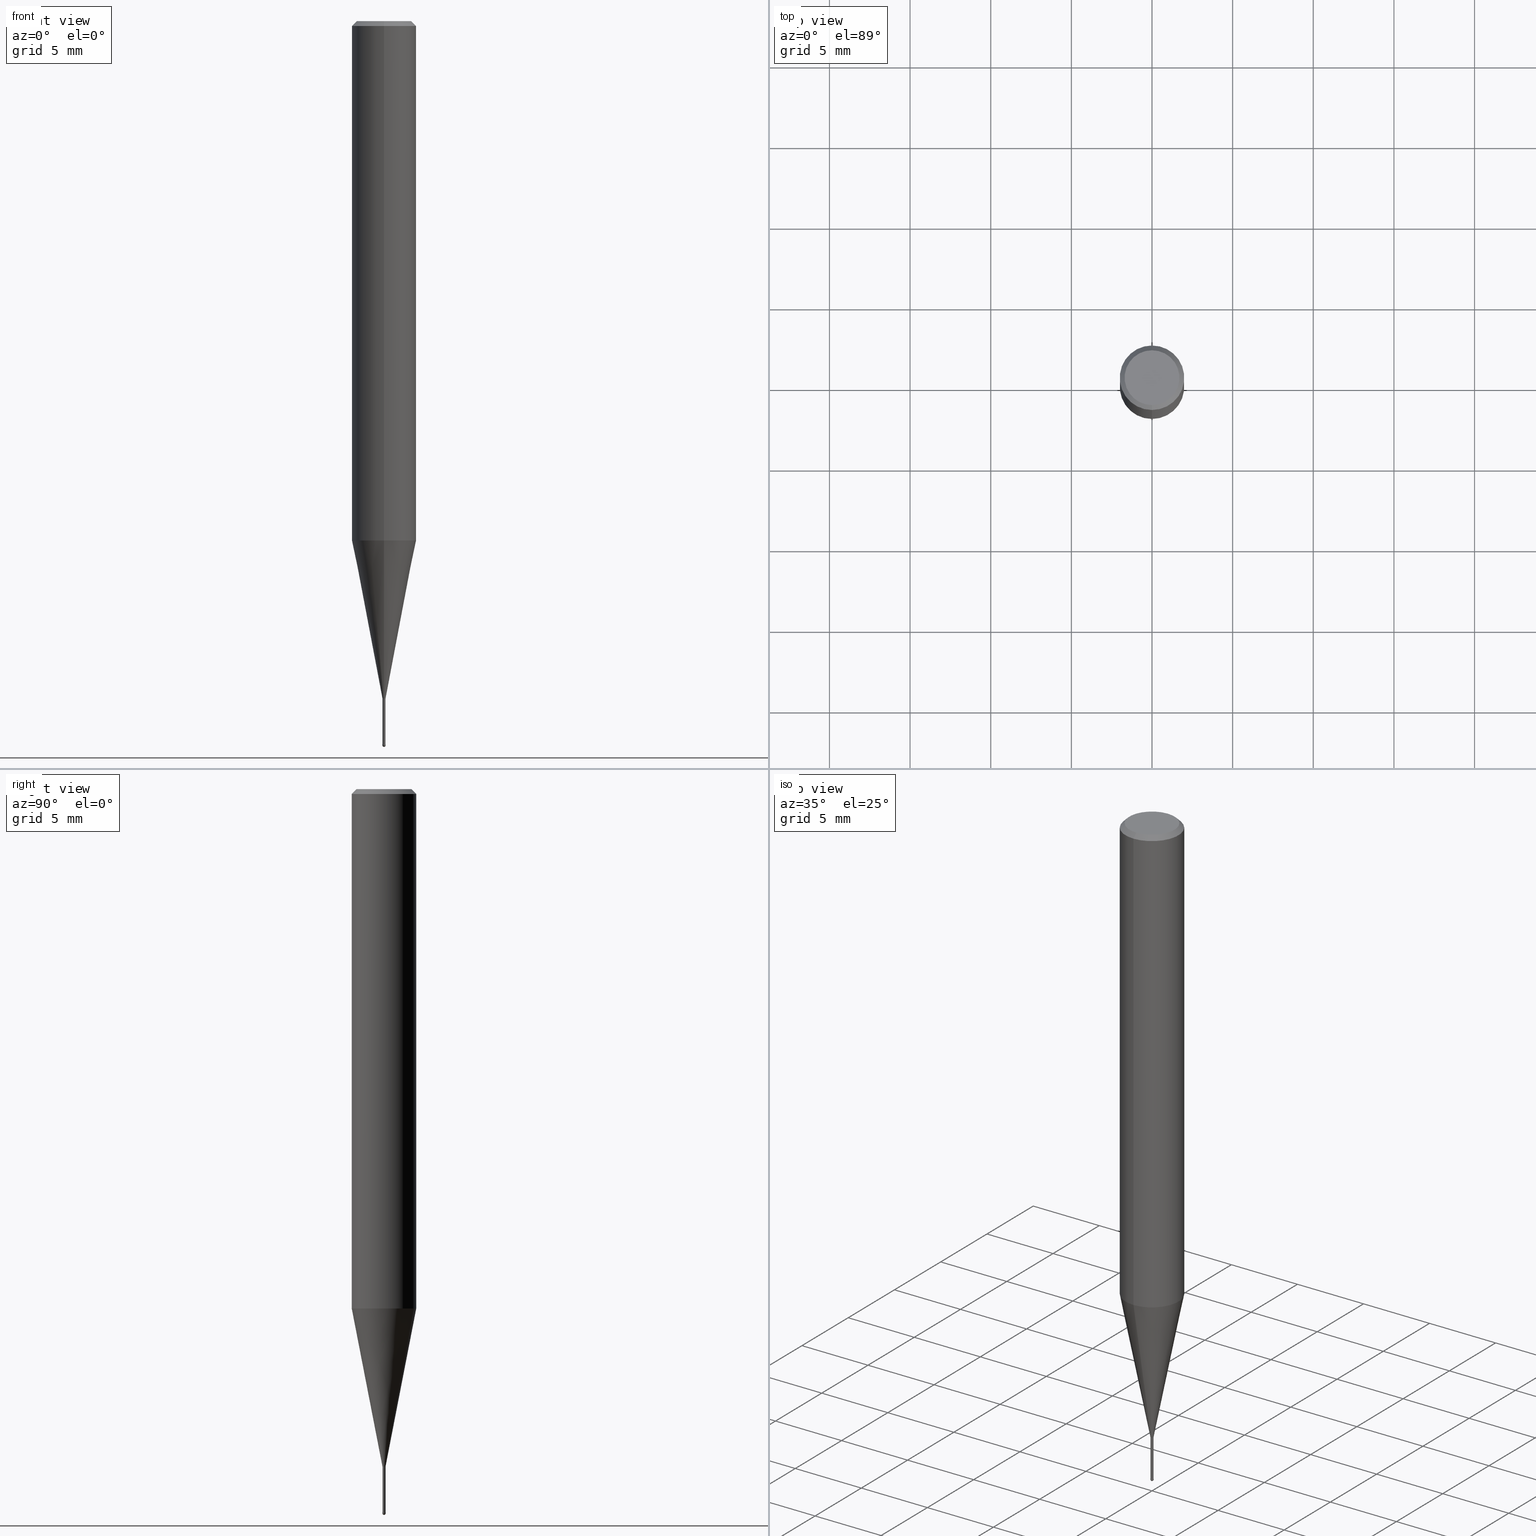
[diagram: canonical four-view strip — front | top / right | iso, engineering-drawing reading convention]
A machine part, canonical four-view strip (front | top / right | iso — engineering-drawing reading convention). The complete STEP part file that produces these views, byte-faithful:
ISO-10303-21;
HEADER;
FILE_DESCRIPTION(('no description'),'unknown implementation level');
FILE_NAME('CSELB2002-030-Huellk.stp','  ',('CIMSOURCE GmbH'),('CADClick - KiM GmbH - www.kimweb.de'),'unknown preprocess','ACIS','unknown authorization');
FILE_SCHEMA(('automotive_design'));
ENDSEC;
DATA;
#1=MECHANICAL_DESIGN_GEOMETRIC_PRESENTATION_REPRESENTATION(' ',(#14,#15,#16,#17,#18,#19,#20,#21,#22,#23,#24,#25,#26,#27,#28,#29,#30,#31,#32,#33,#34,#35,#36,#37,#38,#39,#40,#41,#42,#43,#44,#45,#46,#47,#48,#49,#50,#51,#52,#53,#54,#55,#56,#57,#58,#59,#60,#61,#62,#63,#64,#65,#66,#67,#68,#69,#70,#71,#72,#73,#74),#10);
#2=PRODUCT_DEFINITION_CONTEXT('',#75,'design');
#3=APPLICATION_PROTOCOL_DEFINITION('INTERNATIONAL STANDARD','automotive_design',1994,#75);
#4=PRODUCT_CATEGORY_RELATIONSHIP('NONE','NONE',#76,#77);
#5=SHAPE_DEFINITION_REPRESENTATION(#78,#79);
#6=PRODUCT_DEFINITION_CONTEXT('',#80,'design');
#7=APPLICATION_PROTOCOL_DEFINITION('INTERNATIONAL STANDARD','automotive_design',1994,#80);
#8=PRODUCT_CATEGORY_RELATIONSHIP('NONE','NONE',#81,#82);
#9=SHAPE_DEFINITION_REPRESENTATION(#83,#84);
#10= (GEOMETRIC_REPRESENTATION_CONTEXT(3)GLOBAL_UNCERTAINTY_ASSIGNED_CONTEXT((#87))GLOBAL_UNIT_ASSIGNED_CONTEXT((#89,#90,#91))REPRESENTATION_CONTEXT('NONE','WORKSPACE'));
#14=STYLED_ITEM('',(#93),#94);
#15=STYLED_ITEM('',(#95),#96);
#16=STYLED_ITEM('',(#97),#98);
#17=STYLED_ITEM('',(#99),#100);
#18=STYLED_ITEM('',(#101),#102);
#19=STYLED_ITEM('',(#103),#104);
#20=STYLED_ITEM('',(#105),#106);
#21=STYLED_ITEM('',(#107),#108);
#22=STYLED_ITEM('',(#109),#110);
#23=STYLED_ITEM('',(#111),#112);
#24=STYLED_ITEM('',(#113),#114);
#25=STYLED_ITEM('',(#115),#116);
#26=STYLED_ITEM('',(#117),#118);
#27=STYLED_ITEM('',(#119),#120);
#28=STYLED_ITEM('',(#121),#122);
#29=STYLED_ITEM('',(#123),#124);
#30=STYLED_ITEM('',(#125),#126);
#31=STYLED_ITEM('',(#127),#128);
#32=STYLED_ITEM('',(#129),#130);
#33=STYLED_ITEM('',(#131),#132);
#34=STYLED_ITEM('',(#133),#134);
#35=STYLED_ITEM('',(#135),#136);
#36=STYLED_ITEM('',(#137),#138);
#37=STYLED_ITEM('',(#139),#140);
#38=STYLED_ITEM('',(#141),#142);
#39=STYLED_ITEM('',(#143),#144);
#40=STYLED_ITEM('',(#145),#146);
#41=STYLED_ITEM('',(#147),#148);
#42=STYLED_ITEM('',(#149),#150);
#43=STYLED_ITEM('',(#151),#152);
#44=STYLED_ITEM('',(#153),#154);
#45=STYLED_ITEM('',(#155),#156);
#46=STYLED_ITEM('',(#157),#158);
#47=STYLED_ITEM('',(#159),#160);
#48=STYLED_ITEM('',(#161),#162);
#49=STYLED_ITEM('',(#163),#164);
#50=STYLED_ITEM('',(#165),#166);
#51=STYLED_ITEM('',(#167),#168);
#52=STYLED_ITEM('',(#169),#170);
#53=STYLED_ITEM('',(#171),#172);
#54=STYLED_ITEM('',(#173),#174);
#55=STYLED_ITEM('',(#175),#176);
#56=STYLED_ITEM('',(#177),#178);
#57=STYLED_ITEM('',(#179),#180);
#58=STYLED_ITEM('',(#181),#182);
#59=STYLED_ITEM('',(#183),#184);
#60=STYLED_ITEM('',(#185),#186);
#61=STYLED_ITEM('',(#187),#188);
#62=STYLED_ITEM('',(#189),#190);
#63=STYLED_ITEM('',(#191),#192);
#64=STYLED_ITEM('',(#193),#194);
#65=STYLED_ITEM('',(#195),#196);
#66=STYLED_ITEM('',(#197),#198);
#67=STYLED_ITEM('',(#199),#200);
#68=STYLED_ITEM('',(#201),#202);
#69=STYLED_ITEM('',(#203),#204);
#70=STYLED_ITEM('',(#205),#206);
#71=STYLED_ITEM('',(#207),#208);
#72=STYLED_ITEM('',(#209),#210);
#73=STYLED_ITEM('',(#211),#212);
#74=STYLED_ITEM('',(#213),#214);
#75=APPLICATION_CONTEXT(' ');
#76=PRODUCT_CATEGORY('part','NONE');
#77=PRODUCT_RELATED_PRODUCT_CATEGORY('detail',' ',(#215));
#78=PRODUCT_DEFINITION_SHAPE('NONE','NONE',#216);
#79=ADVANCED_BREP_SHAPE_REPRESENTATION('1',(#102,#217),#10);
#80=APPLICATION_CONTEXT(' ');
#81=PRODUCT_CATEGORY('part','NONE');
#82=PRODUCT_RELATED_PRODUCT_CATEGORY('detail',' ',(#218));
#83=PRODUCT_DEFINITION_SHAPE('NONE','NONE',#219);
#84=ADVANCED_BREP_SHAPE_REPRESENTATION('2',(#162,#220),#10);
#87=UNCERTAINTY_MEASURE_WITH_UNIT(LENGTH_MEASURE(1.0E-006),#89,'','');
#89= (CONVERSION_BASED_UNIT('MILLIMETRE',#223)LENGTH_UNIT()NAMED_UNIT(#226));
#90= (NAMED_UNIT(#228)PLANE_ANGLE_UNIT()SI_UNIT($,.RADIAN.));
#91= (NAMED_UNIT(#228)SOLID_ANGLE_UNIT()SI_UNIT($,.STERADIAN.));
#93=PRESENTATION_STYLE_ASSIGNMENT((#234));
#94=ADVANCED_FACE('',(#235),#236,.T.);
#95=PRESENTATION_STYLE_ASSIGNMENT((#237));
#96=EDGE_CURVE('',#136,#120,#238,.T.);
#97=PRESENTATION_STYLE_ASSIGNMENT((#239));
#98=EDGE_CURVE('',#208,#184,#240,.T.);
#99=PRESENTATION_STYLE_ASSIGNMENT((#241));
#100=ADVANCED_FACE('',(#242),#243,.T.);
#101=PRESENTATION_STYLE_ASSIGNMENT((#244));
#102=MANIFOLD_SOLID_BREP('1',#245);
#103=PRESENTATION_STYLE_ASSIGNMENT((#246));
#104=EDGE_CURVE('',#194,#188,#247,.T.);
#105=PRESENTATION_STYLE_ASSIGNMENT((#248));
#106=ADVANCED_FACE('',(#249),#250,.T.);
#107=PRESENTATION_STYLE_ASSIGNMENT((#251));
#108=ADVANCED_FACE('',(#252),#253,.T.);
#109=PRESENTATION_STYLE_ASSIGNMENT((#254));
#110=ADVANCED_FACE('',(#255),#256,.T.);
#111=PRESENTATION_STYLE_ASSIGNMENT((#257));
#112=EDGE_CURVE('',#180,#194,#258,.T.);
#113=PRESENTATION_STYLE_ASSIGNMENT((#259));
#114=ADVANCED_FACE('',(#260),#261,.T.);
#115=PRESENTATION_STYLE_ASSIGNMENT((#262));
#116=VERTEX_POINT('',#263);
#117=PRESENTATION_STYLE_ASSIGNMENT((#264));
#118=ADVANCED_FACE('',(#265),#266,.T.);
#119=PRESENTATION_STYLE_ASSIGNMENT((#267));
#120=VERTEX_POINT('',#268);
#121=PRESENTATION_STYLE_ASSIGNMENT((#269));
#122=EDGE_CURVE('',#120,#206,#270,.T.);
#123=PRESENTATION_STYLE_ASSIGNMENT((#271));
#124=EDGE_CURVE('',#210,#206,#272,.T.);
#125=PRESENTATION_STYLE_ASSIGNMENT((#273));
#126=ADVANCED_FACE('',(#274),#275,.T.);
#127=PRESENTATION_STYLE_ASSIGNMENT((#276));
#128=EDGE_CURVE('',#210,#136,#277,.T.);
#129=PRESENTATION_STYLE_ASSIGNMENT((#278));
#130=EDGE_CURVE('',#190,#168,#279,.T.);
#131=PRESENTATION_STYLE_ASSIGNMENT((#280));
#132=EDGE_CURVE('',#206,#184,#281,.T.);
#133=PRESENTATION_STYLE_ASSIGNMENT((#282));
#134=ADVANCED_FACE('',(#283),#284,.T.);
#135=PRESENTATION_STYLE_ASSIGNMENT((#285));
#136=VERTEX_POINT('',#286);
#137=PRESENTATION_STYLE_ASSIGNMENT((#287));
#138=VERTEX_POINT('',#288);
#139=PRESENTATION_STYLE_ASSIGNMENT((#289));
#140=EDGE_CURVE('',#120,#136,#290,.T.);
#141=PRESENTATION_STYLE_ASSIGNMENT((#291));
#142=EDGE_CURVE('',#184,#208,#292,.T.);
#143=PRESENTATION_STYLE_ASSIGNMENT((#293));
#144=EDGE_CURVE('',#150,#194,#294,.T.);
#145=PRESENTATION_STYLE_ASSIGNMENT((#295));
#146=EDGE_CURVE('',#180,#200,#296,.T.);
#147=PRESENTATION_STYLE_ASSIGNMENT((#297));
#148=EDGE_CURVE('',#206,#210,#298,.T.);
#149=PRESENTATION_STYLE_ASSIGNMENT((#299));
#150=VERTEX_POINT('',#300);
#151=PRESENTATION_STYLE_ASSIGNMENT((#301));
#152=ADVANCED_FACE('',(#302),#303,.T.);
#153=PRESENTATION_STYLE_ASSIGNMENT((#304));
#154=ADVANCED_FACE('',(#305),#306,.T.);
#155=PRESENTATION_STYLE_ASSIGNMENT((#307));
#156=EDGE_CURVE('',#208,#210,#308,.T.);
#157=PRESENTATION_STYLE_ASSIGNMENT((#309));
#158=EDGE_CURVE('',#168,#190,#310,.T.);
#159=PRESENTATION_STYLE_ASSIGNMENT((#311));
#160=EDGE_CURVE('',#168,#138,#312,.T.);
#161=PRESENTATION_STYLE_ASSIGNMENT((#313));
#162=MANIFOLD_SOLID_BREP('2',#314);
#163=PRESENTATION_STYLE_ASSIGNMENT((#315));
#164=ADVANCED_FACE('',(#316,#317),#318,.T.);
#165=PRESENTATION_STYLE_ASSIGNMENT((#319));
#166=EDGE_CURVE('',#138,#176,#320,.T.);
#167=PRESENTATION_STYLE_ASSIGNMENT((#321));
#168=VERTEX_POINT('',#322);
#169=PRESENTATION_STYLE_ASSIGNMENT((#323));
#170=EDGE_CURVE('',#168,#190,#324,.T.);
#171=PRESENTATION_STYLE_ASSIGNMENT((#325));
#172=ADVANCED_FACE('',(#326),#327,.T.);
#173=PRESENTATION_STYLE_ASSIGNMENT((#328));
#174=EDGE_CURVE('',#200,#150,#329,.T.);
#175=PRESENTATION_STYLE_ASSIGNMENT((#330));
#176=VERTEX_POINT('',#331);
#177=PRESENTATION_STYLE_ASSIGNMENT((#332));
#178=ADVANCED_FACE('',(#333),#334,.T.);
#179=PRESENTATION_STYLE_ASSIGNMENT((#335));
#180=VERTEX_POINT('',#336);
#181=PRESENTATION_STYLE_ASSIGNMENT((#337));
#182=ADVANCED_FACE('',(#338),#339,.T.);
#183=PRESENTATION_STYLE_ASSIGNMENT((#340));
#184=VERTEX_POINT('',#341);
#185=PRESENTATION_STYLE_ASSIGNMENT((#342));
#186=EDGE_CURVE('',#150,#200,#343,.T.);
#187=PRESENTATION_STYLE_ASSIGNMENT((#344));
#188=VERTEX_POINT('',#345);
#189=PRESENTATION_STYLE_ASSIGNMENT((#346));
#190=VERTEX_POINT('',#347);
#191=PRESENTATION_STYLE_ASSIGNMENT((#348));
#192=EDGE_CURVE('',#116,#188,#349,.T.);
#193=PRESENTATION_STYLE_ASSIGNMENT((#350));
#194=VERTEX_POINT('',#351);
#195=PRESENTATION_STYLE_ASSIGNMENT((#352));
#196=ADVANCED_FACE('',(#353),#354,.T.);
#197=PRESENTATION_STYLE_ASSIGNMENT((#355));
#198=EDGE_CURVE('',#116,#180,#356,.T.);
#199=PRESENTATION_STYLE_ASSIGNMENT((#357));
#200=VERTEX_POINT('',#358);
#201=PRESENTATION_STYLE_ASSIGNMENT((#359));
#202=EDGE_CURVE('',#176,#138,#360,.T.);
#203=PRESENTATION_STYLE_ASSIGNMENT((#361));
#204=EDGE_CURVE('',#188,#116,#362,.T.);
#205=PRESENTATION_STYLE_ASSIGNMENT((#363));
#206=VERTEX_POINT('',#364);
#207=PRESENTATION_STYLE_ASSIGNMENT((#365));
#208=VERTEX_POINT('',#366);
#209=PRESENTATION_STYLE_ASSIGNMENT((#367));
#210=VERTEX_POINT('',#368);
#211=PRESENTATION_STYLE_ASSIGNMENT((#369));
#212=EDGE_CURVE('',#176,#190,#370,.T.);
#213=PRESENTATION_STYLE_ASSIGNMENT((#371));
#214=EDGE_CURVE('',#194,#180,#372,.T.);
#215=PRODUCT('1','1','PART-1-DESC',(#373));
#216=PRODUCT_DEFINITION('NONE','NONE',#374,#2);
#217=AXIS2_PLACEMENT_3D('',#375,#376,#377);
#218=PRODUCT('2','2','PART-2-DESC',(#378));
#219=PRODUCT_DEFINITION('NONE','NONE',#379,#6);
#220=AXIS2_PLACEMENT_3D('',#380,#381,#382);
#223=LENGTH_MEASURE_WITH_UNIT(LENGTH_MEASURE(1.0),#383);
#226=DIMENSIONAL_EXPONENTS(1.0,0.0,0.0,0.0,0.0,0.0,0.0);
#228=DIMENSIONAL_EXPONENTS(0.0,0.0,0.0,0.0,0.0,0.0,0.0);
#234=SURFACE_STYLE_USAGE(.BOTH.,#384);
#235=FACE_OUTER_BOUND('',#385,.T.);
#236=CYLINDRICAL_SURFACE('',#386,0.09495);
#237=CURVE_STYLE('',#387,POSITIVE_LENGTH_MEASURE(1.0E-006),#388);
#238=CIRCLE('',#389,2.0);
#239=CURVE_STYLE('',#390,POSITIVE_LENGTH_MEASURE(1.0E-006),#391);
#240=CIRCLE('',#392,1.7);
#241=SURFACE_STYLE_USAGE(.BOTH.,#393);
#242=FACE_OUTER_BOUND('',#394,.T.);
#243=CONICAL_SURFACE('',#395,1.85,0.785398163397447);
#244=SURFACE_STYLE_USAGE(.BOTH.,#396);
#245=CLOSED_SHELL('',(#94,#114,#134,#108,#164,#154,#100,#110,#178,#172,#182));
#246=CURVE_STYLE('',#397,POSITIVE_LENGTH_MEASURE(1.0E-006),#398);
#247=LINE('',#399,#400);
#248=SURFACE_STYLE_USAGE(.BOTH.,#401);
#249=FACE_OUTER_BOUND('',#402,.T.);
#250=CONICAL_SURFACE('',#403,0.09995,0.00166666512345941);
#251=SURFACE_STYLE_USAGE(.BOTH.,#404);
#252=FACE_OUTER_BOUND('',#405,.T.);
#253=CONICAL_SURFACE('',#406,1.85,0.785398163397447);
#254=SURFACE_STYLE_USAGE(.BOTH.,#407);
#255=FACE_OUTER_BOUND('',#408,.T.);
#256=CYLINDRICAL_SURFACE('',#409,2.0);
#257=CURVE_STYLE('',#410,POSITIVE_LENGTH_MEASURE(1.0E-006),#411);
#258=CIRCLE('',#412,0.09495);
#259=SURFACE_STYLE_USAGE(.BOTH.,#413);
#260=FACE_OUTER_BOUND('',#414,.T.);
#261=CONICAL_SURFACE('',#415,1.04745,0.191993392580482);
#262=POINT_STYLE(' ',#416,POSITIVE_LENGTH_MEASURE(1.0E-006),#417);
#263=CARTESIAN_POINT('',(0.0,1.99995,-32.2));
#264=SURFACE_STYLE_USAGE(.BOTH.,#418);
#265=FACE_OUTER_BOUND('',#419,.T.);
#266=SPHERICAL_SURFACE('',#420,0.1);
#267=POINT_STYLE(' ',#421,POSITIVE_LENGTH_MEASURE(1.0E-006),#422);
#268=CARTESIAN_POINT('',(2.44921270764475E-016,-2.0,-32.2));
#269=CURVE_STYLE('',#423,POSITIVE_LENGTH_MEASURE(1.0E-006),#424);
#270=LINE('',#425,#426);
#271=CURVE_STYLE('',#427,POSITIVE_LENGTH_MEASURE(1.0E-006),#428);
#272=CIRCLE('',#429,2.0);
#273=SURFACE_STYLE_USAGE(.BOTH.,#430);
#274=FACE_OUTER_BOUND('',#431,.T.);
#275=CONICAL_SURFACE('',#432,0.09995,0.00166666512345941);
#276=CURVE_STYLE('',#433,POSITIVE_LENGTH_MEASURE(1.0E-006),#434);
#277=LINE('',#435,#436);
#278=CURVE_STYLE('',#437,POSITIVE_LENGTH_MEASURE(1.0E-006),#438);
#279=CIRCLE('',#439,0.1);
#280=CURVE_STYLE('',#440,POSITIVE_LENGTH_MEASURE(1.0E-006),#441);
#281=LINE('',#442,#443);
#282=SURFACE_STYLE_USAGE(.BOTH.,#444);
#283=FACE_OUTER_BOUND('',#445,.T.);
#284=CYLINDRICAL_SURFACE('',#446,2.0);
#285=POINT_STYLE(' ',#447,POSITIVE_LENGTH_MEASURE(1.0E-006),#448);
#286=CARTESIAN_POINT('',(0.0,2.0,-32.2));
#287=POINT_STYLE(' ',#449,POSITIVE_LENGTH_MEASURE(1.0E-006),#450);
#288=CARTESIAN_POINT('',(1.22338174746855E-017,-0.0999,-44.84));
#289=CURVE_STYLE('',#451,POSITIVE_LENGTH_MEASURE(1.0E-006),#452);
#290=CIRCLE('',#453,2.0);
#291=CURVE_STYLE('',#454,POSITIVE_LENGTH_MEASURE(1.0E-006),#455);
#292=CIRCLE('',#456,1.7);
#293=CURVE_STYLE('',#457,POSITIVE_LENGTH_MEASURE(1.0E-006),#458);
#294=LINE('',#459,#460);
#295=CURVE_STYLE('',#461,POSITIVE_LENGTH_MEASURE(1.0E-006),#462);
#296=LINE('',#463,#464);
#297=CURVE_STYLE('',#465,POSITIVE_LENGTH_MEASURE(1.0E-006),#466);
#298=CIRCLE('',#467,2.0);
#299=POINT_STYLE(' ',#468,POSITIVE_LENGTH_MEASURE(1.0E-006),#469);
#300=CARTESIAN_POINT('',(1.16276373295435E-017,-0.09495,-44.84));
#301=SURFACE_STYLE_USAGE(.BOTH.,#470);
#302=FACE_OUTER_BOUND('',#471,.T.);
#303=SPHERICAL_SURFACE('',#472,0.1);
#304=SURFACE_STYLE_USAGE(.BOTH.,#473);
#305=FACE_OUTER_BOUND('',#474,.T.);
#306=PLANE('',#475);
#307=CURVE_STYLE('',#476,POSITIVE_LENGTH_MEASURE(1.0E-006),#477);
#308=LINE('',#478,#479);
#309=CURVE_STYLE('',#480,POSITIVE_LENGTH_MEASURE(1.0E-006),#481);
#310=CIRCLE('',#482,0.1);
#311=CURVE_STYLE('',#483,POSITIVE_LENGTH_MEASURE(1.0E-006),#484);
#312=LINE('',#485,#486);
#313=SURFACE_STYLE_USAGE(.BOTH.,#487);
#314=CLOSED_SHELL('',(#118,#126,#196,#106,#152));
#315=SURFACE_STYLE_USAGE(.BOTH.,#488);
#316=FACE_OUTER_BOUND('',#489,.T.);
#317=FACE_BOUND('',#490,.T.);
#318=PLANE('',#491);
#319=CURVE_STYLE('',#492,POSITIVE_LENGTH_MEASURE(1.0E-006),#493);
#320=CIRCLE('',#494,0.0999);
#321=POINT_STYLE(' ',#495,POSITIVE_LENGTH_MEASURE(1.0E-006),#496);
#322=CARTESIAN_POINT('',(1.22460635382238E-017,-0.1,-44.9));
#323=CURVE_STYLE('',#497,POSITIVE_LENGTH_MEASURE(1.0E-006),#498);
#324=CIRCLE('',#499,0.1);
#325=SURFACE_STYLE_USAGE(.BOTH.,#500);
#326=FACE_OUTER_BOUND('',#501,.T.);
#327=CYLINDRICAL_SURFACE('',#502,0.09495);
#328=CURVE_STYLE('',#503,POSITIVE_LENGTH_MEASURE(1.0E-006),#504);
#329=CIRCLE('',#505,0.09495);
#330=POINT_STYLE(' ',#506,POSITIVE_LENGTH_MEASURE(1.0E-006),#507);
#331=CARTESIAN_POINT('',(0.0,0.0999,-44.84));
#332=SURFACE_STYLE_USAGE(.BOTH.,#508);
#333=FACE_OUTER_BOUND('',#509,.T.);
#334=CONICAL_SURFACE('',#510,1.04745,0.191993392580482);
#335=POINT_STYLE(' ',#511,POSITIVE_LENGTH_MEASURE(1.0E-006),#512);
#336=CARTESIAN_POINT('',(0.0,0.09495,-42.0));
#337=SURFACE_STYLE_USAGE(.BOTH.,#513);
#338=FACE_OUTER_BOUND('',#514,.T.);
#339=PLANE('',#515);
#340=POINT_STYLE(' ',#516,POSITIVE_LENGTH_MEASURE(1.0E-006),#517);
#341=CARTESIAN_POINT('',(2.08183080149804E-016,-1.7,0.0));
#342=CURVE_STYLE('',#518,POSITIVE_LENGTH_MEASURE(1.0E-006),#519);
#343=CIRCLE('',#520,0.09495);
#344=POINT_STYLE(' ',#521,POSITIVE_LENGTH_MEASURE(1.0E-006),#522);
#345=CARTESIAN_POINT('',(2.44915147732706E-016,-1.99995,-32.2));
#346=POINT_STYLE(' ',#523,POSITIVE_LENGTH_MEASURE(1.0E-006),#524);
#347=CARTESIAN_POINT('',(0.0,0.1,-44.9));
#348=CURVE_STYLE('',#525,POSITIVE_LENGTH_MEASURE(1.0E-006),#526);
#349=CIRCLE('',#527,1.99995);
#350=POINT_STYLE(' ',#528,POSITIVE_LENGTH_MEASURE(1.0E-006),#529);
#351=CARTESIAN_POINT('',(1.16276373295435E-017,-0.09495,-42.0));
#352=SURFACE_STYLE_USAGE(.BOTH.,#530);
#353=FACE_OUTER_BOUND('',#531,.T.);
#354=PLANE('',#532);
#355=CURVE_STYLE('',#533,POSITIVE_LENGTH_MEASURE(1.0E-006),#534);
#356=LINE('',#535,#536);
#357=POINT_STYLE(' ',#537,POSITIVE_LENGTH_MEASURE(1.0E-006),#538);
#358=CARTESIAN_POINT('',(0.0,0.09495,-44.84));
#359=CURVE_STYLE('',#539,POSITIVE_LENGTH_MEASURE(1.0E-006),#540);
#360=CIRCLE('',#541,0.0999);
#361=CURVE_STYLE('',#542,POSITIVE_LENGTH_MEASURE(1.0E-006),#543);
#362=CIRCLE('',#544,1.99995);
#363=POINT_STYLE(' ',#545,POSITIVE_LENGTH_MEASURE(1.0E-006),#546);
#364=CARTESIAN_POINT('',(2.44921270764475E-016,-2.0,-0.300000000000001));
#365=POINT_STYLE(' ',#547,POSITIVE_LENGTH_MEASURE(1.0E-006),#548);
#366=CARTESIAN_POINT('',(0.0,1.7,0.0));
#367=POINT_STYLE(' ',#549,POSITIVE_LENGTH_MEASURE(1.0E-006),#550);
#368=CARTESIAN_POINT('',(0.0,2.0,-0.300000000000001));
#369=CURVE_STYLE('',#551,POSITIVE_LENGTH_MEASURE(1.0E-006),#552);
#370=LINE('',#553,#554);
#371=CURVE_STYLE('',#555,POSITIVE_LENGTH_MEASURE(1.0E-006),#556);
#372=CIRCLE('',#557,0.09495);
#373=PRODUCT_CONTEXT('',#75,'mechanical');
#374=PRODUCT_DEFINITION_FORMATION_WITH_SPECIFIED_SOURCE(' ','NONE',#215,.NOT_KNOWN.);
#375=CARTESIAN_POINT('',(0.0,0.0,0.0));
#376=DIRECTION('',(0.0,0.0,1.0));
#377=DIRECTION('',(1.0,0.0,0.0));
#378=PRODUCT_CONTEXT('',#80,'mechanical');
#379=PRODUCT_DEFINITION_FORMATION_WITH_SPECIFIED_SOURCE(' ','NONE',#218,.NOT_KNOWN.);
#380=CARTESIAN_POINT('',(0.0,0.0,0.0));
#381=DIRECTION('',(0.0,0.0,1.0));
#382=DIRECTION('',(1.0,0.0,0.0));
#383= (NAMED_UNIT(#226)LENGTH_UNIT()SI_UNIT(.MILLI.,.METRE.));
#384=SURFACE_SIDE_STYLE('',(#559));
#385=EDGE_LOOP('',(#560,#561,#562,#563));
#386=AXIS2_PLACEMENT_3D('',#564,#565,#566);
#387=DRAUGHTING_PRE_DEFINED_CURVE_FONT('continuous');
#388=COLOUR_RGB('',0.498039215803146,0.498039215803146,0.498039215803146);
#389=AXIS2_PLACEMENT_3D('',#567,#568,#569);
#390=DRAUGHTING_PRE_DEFINED_CURVE_FONT('continuous');
#391=COLOUR_RGB('',0.498039215803146,0.498039215803146,0.498039215803146);
#392=AXIS2_PLACEMENT_3D('',#570,#571,#572);
#393=SURFACE_SIDE_STYLE('',(#573));
#394=EDGE_LOOP('',(#574,#575,#576,#577));
#395=AXIS2_PLACEMENT_3D('',#578,#579,#580);
#396=SURFACE_SIDE_STYLE('',(#581));
#397=DRAUGHTING_PRE_DEFINED_CURVE_FONT('continuous');
#398=COLOUR_RGB('',0.498039215803146,0.498039215803146,0.498039215803146);
#399=CARTESIAN_POINT('',(1.28271392531125E-016,-1.04745,-37.1));
#400=VECTOR('',#582,1.0);
#401=SURFACE_SIDE_STYLE('',(#583));
#402=EDGE_LOOP('',(#584,#585,#586,#587));
#403=AXIS2_PLACEMENT_3D('',#588,#589,#590);
#404=SURFACE_SIDE_STYLE('',(#591));
#405=EDGE_LOOP('',(#592,#593,#594,#595));
#406=AXIS2_PLACEMENT_3D('',#596,#597,#598);
#407=SURFACE_SIDE_STYLE('',(#599));
#408=EDGE_LOOP('',(#600,#601,#602,#603));
#409=AXIS2_PLACEMENT_3D('',#604,#605,#606);
#410=DRAUGHTING_PRE_DEFINED_CURVE_FONT('continuous');
#411=COLOUR_RGB('',0.498039215803146,0.498039215803146,0.498039215803146);
#412=AXIS2_PLACEMENT_3D('',#607,#608,#609);
#413=SURFACE_SIDE_STYLE('',(#610));
#414=EDGE_LOOP('',(#611,#612,#613,#614));
#415=AXIS2_PLACEMENT_3D('',#615,#616,#617);
#416=PRE_DEFINED_MARKER('');
#417=COLOUR_RGB('',0.498039215803146,0.498039215803146,0.498039215803146);
#418=SURFACE_SIDE_STYLE('',(#618));
#419=EDGE_LOOP('',(#619,#620));
#420=AXIS2_PLACEMENT_3D('',#621,#622,#623);
#421=PRE_DEFINED_MARKER('');
#422=COLOUR_RGB('',0.498039215803146,0.498039215803146,0.498039215803146);
#423=DRAUGHTING_PRE_DEFINED_CURVE_FONT('continuous');
#424=COLOUR_RGB('',0.498039215803146,0.498039215803146,0.498039215803146);
#425=CARTESIAN_POINT('',(2.44921270764475E-016,-2.0,-16.25));
#426=VECTOR('',#624,1.0);
#427=DRAUGHTING_PRE_DEFINED_CURVE_FONT('continuous');
#428=COLOUR_RGB('',0.498039215803146,0.498039215803146,0.498039215803146);
#429=AXIS2_PLACEMENT_3D('',#625,#626,#627);
#430=SURFACE_SIDE_STYLE('',(#628));
#431=EDGE_LOOP('',(#629,#630,#631,#632));
#432=AXIS2_PLACEMENT_3D('',#633,#634,#635);
#433=DRAUGHTING_PRE_DEFINED_CURVE_FONT('continuous');
#434=COLOUR_RGB('',0.498039215803146,0.498039215803146,0.498039215803146);
#435=CARTESIAN_POINT('',(-2.44921270764475E-016,2.0,-16.25));
#436=VECTOR('',#636,1.0);
#437=DRAUGHTING_PRE_DEFINED_CURVE_FONT('continuous');
#438=COLOUR_RGB('',0.800000011920929,0.800000011920929,0.800000011920929);
#439=AXIS2_PLACEMENT_3D('',#637,#638,#639);
#440=DRAUGHTING_PRE_DEFINED_CURVE_FONT('continuous');
#441=COLOUR_RGB('',0.498039215803146,0.498039215803146,0.498039215803146);
#442=CARTESIAN_POINT('',(2.2655217545714E-016,-1.85,-0.149999999999999));
#443=VECTOR('',#640,1.0);
#444=SURFACE_SIDE_STYLE('',(#641));
#445=EDGE_LOOP('',(#642,#643,#644,#645));
#446=AXIS2_PLACEMENT_3D('',#646,#647,#648);
#447=PRE_DEFINED_MARKER('');
#448=COLOUR_RGB('',0.498039215803146,0.498039215803146,0.498039215803146);
#449=PRE_DEFINED_MARKER('');
#450=COLOUR_RGB('',0.800000011920929,0.800000011920929,0.800000011920929);
#451=DRAUGHTING_PRE_DEFINED_CURVE_FONT('continuous');
#452=COLOUR_RGB('',0.498039215803146,0.498039215803146,0.498039215803146);
#453=AXIS2_PLACEMENT_3D('',#649,#650,#651);
#454=DRAUGHTING_PRE_DEFINED_CURVE_FONT('continuous');
#455=COLOUR_RGB('',0.498039215803146,0.498039215803146,0.498039215803146);
#456=AXIS2_PLACEMENT_3D('',#652,#653,#654);
#457=DRAUGHTING_PRE_DEFINED_CURVE_FONT('continuous');
#458=COLOUR_RGB('',0.498039215803146,0.498039215803146,0.498039215803146);
#459=CARTESIAN_POINT('',(1.16276373295435E-017,-0.09495,-43.42));
#460=VECTOR('',#655,1.0);
#461=DRAUGHTING_PRE_DEFINED_CURVE_FONT('continuous');
#462=COLOUR_RGB('',0.498039215803146,0.498039215803146,0.498039215803146);
#463=CARTESIAN_POINT('',(-1.16276373295435E-017,0.09495,-43.42));
#464=VECTOR('',#656,1.0);
#465=DRAUGHTING_PRE_DEFINED_CURVE_FONT('continuous');
#466=COLOUR_RGB('',0.498039215803146,0.498039215803146,0.498039215803146);
#467=AXIS2_PLACEMENT_3D('',#657,#658,#659);
#468=PRE_DEFINED_MARKER('');
#469=COLOUR_RGB('',0.498039215803146,0.498039215803146,0.498039215803146);
#470=SURFACE_SIDE_STYLE('',(#660));
#471=EDGE_LOOP('',(#661,#662));
#472=AXIS2_PLACEMENT_3D('',#663,#664,#665);
#473=SURFACE_SIDE_STYLE('',(#666));
#474=EDGE_LOOP('',(#667,#668));
#475=AXIS2_PLACEMENT_3D('',#669,#670,#671);
#476=DRAUGHTING_PRE_DEFINED_CURVE_FONT('continuous');
#477=COLOUR_RGB('',0.498039215803146,0.498039215803146,0.498039215803146);
#478=CARTESIAN_POINT('',(-2.2655217545714E-016,1.85,-0.149999999999999));
#479=VECTOR('',#672,1.0);
#480=DRAUGHTING_PRE_DEFINED_CURVE_FONT('continuous');
#481=COLOUR_RGB('',0.800000011920929,0.800000011920929,0.800000011920929);
#482=AXIS2_PLACEMENT_3D('',#673,#674,#675);
#483=DRAUGHTING_PRE_DEFINED_CURVE_FONT('continuous');
#484=COLOUR_RGB('',0.800000011920929,0.800000011920929,0.800000011920929);
#485=CARTESIAN_POINT('',(1.22399405064547E-017,-0.09995,-44.87));
#486=VECTOR('',#676,1.0);
#487=SURFACE_SIDE_STYLE('',(#677));
#488=SURFACE_SIDE_STYLE('',(#678));
#489=EDGE_LOOP('',(#679,#680));
#490=EDGE_LOOP('',(#681,#682));
#491=AXIS2_PLACEMENT_3D('',#683,#684,#685);
#492=DRAUGHTING_PRE_DEFINED_CURVE_FONT('continuous');
#493=COLOUR_RGB('',0.800000011920929,0.800000011920929,0.800000011920929);
#494=AXIS2_PLACEMENT_3D('',#686,#687,#688);
#495=PRE_DEFINED_MARKER('');
#496=COLOUR_RGB('',0.800000011920929,0.800000011920929,0.800000011920929);
#497=DRAUGHTING_PRE_DEFINED_CURVE_FONT('continuous');
#498=COLOUR_RGB('',0.800000011920929,0.800000011920929,0.800000011920929);
#499=AXIS2_PLACEMENT_3D('',#689,#690,#691);
#500=SURFACE_SIDE_STYLE('',(#692));
#501=EDGE_LOOP('',(#693,#694,#695,#696));
#502=AXIS2_PLACEMENT_3D('',#697,#698,#699);
#503=DRAUGHTING_PRE_DEFINED_CURVE_FONT('continuous');
#504=COLOUR_RGB('',0.498039215803146,0.498039215803146,0.498039215803146);
#505=AXIS2_PLACEMENT_3D('',#700,#701,#702);
#506=PRE_DEFINED_MARKER('');
#507=COLOUR_RGB('',0.800000011920929,0.800000011920929,0.800000011920929);
#508=SURFACE_SIDE_STYLE('',(#703));
#509=EDGE_LOOP('',(#704,#705,#706,#707));
#510=AXIS2_PLACEMENT_3D('',#708,#709,#710);
#511=PRE_DEFINED_MARKER('');
#512=COLOUR_RGB('',0.498039215803146,0.498039215803146,0.498039215803146);
#513=SURFACE_SIDE_STYLE('',(#711));
#514=EDGE_LOOP('',(#712,#713));
#515=AXIS2_PLACEMENT_3D('',#714,#715,#716);
#516=PRE_DEFINED_MARKER('');
#517=COLOUR_RGB('',0.498039215803146,0.498039215803146,0.498039215803146);
#518=DRAUGHTING_PRE_DEFINED_CURVE_FONT('continuous');
#519=COLOUR_RGB('',0.498039215803146,0.498039215803146,0.498039215803146);
#520=AXIS2_PLACEMENT_3D('',#717,#718,#719);
#521=PRE_DEFINED_MARKER('');
#522=COLOUR_RGB('',0.498039215803146,0.498039215803146,0.498039215803146);
#523=PRE_DEFINED_MARKER('');
#524=COLOUR_RGB('',0.800000011920929,0.800000011920929,0.800000011920929);
#525=DRAUGHTING_PRE_DEFINED_CURVE_FONT('continuous');
#526=COLOUR_RGB('',0.498039215803146,0.498039215803146,0.498039215803146);
#527=AXIS2_PLACEMENT_3D('',#720,#721,#722);
#528=PRE_DEFINED_MARKER('');
#529=COLOUR_RGB('',0.498039215803146,0.498039215803146,0.498039215803146);
#530=SURFACE_SIDE_STYLE('',(#723));
#531=EDGE_LOOP('',(#724,#725));
#532=AXIS2_PLACEMENT_3D('',#726,#727,#728);
#533=DRAUGHTING_PRE_DEFINED_CURVE_FONT('continuous');
#534=COLOUR_RGB('',0.498039215803146,0.498039215803146,0.498039215803146);
#535=CARTESIAN_POINT('',(-1.28271392531125E-016,1.04745,-37.1));
#536=VECTOR('',#729,1.0);
#537=PRE_DEFINED_MARKER('');
#538=COLOUR_RGB('',0.498039215803146,0.498039215803146,0.498039215803146);
#539=DRAUGHTING_PRE_DEFINED_CURVE_FONT('continuous');
#540=COLOUR_RGB('',0.800000011920929,0.800000011920929,0.800000011920929);
#541=AXIS2_PLACEMENT_3D('',#730,#731,#732);
#542=DRAUGHTING_PRE_DEFINED_CURVE_FONT('continuous');
#543=COLOUR_RGB('',0.498039215803146,0.498039215803146,0.498039215803146);
#544=AXIS2_PLACEMENT_3D('',#733,#734,#735);
#545=PRE_DEFINED_MARKER('');
#546=COLOUR_RGB('',0.498039215803146,0.498039215803146,0.498039215803146);
#547=PRE_DEFINED_MARKER('');
#548=COLOUR_RGB('',0.498039215803146,0.498039215803146,0.498039215803146);
#549=PRE_DEFINED_MARKER('');
#550=COLOUR_RGB('',0.498039215803146,0.498039215803146,0.498039215803146);
#551=DRAUGHTING_PRE_DEFINED_CURVE_FONT('continuous');
#552=COLOUR_RGB('',0.800000011920929,0.800000011920929,0.800000011920929);
#553=CARTESIAN_POINT('',(-1.22399405064547E-017,0.09995,-44.87));
#554=VECTOR('',#736,1.0);
#555=DRAUGHTING_PRE_DEFINED_CURVE_FONT('continuous');
#556=COLOUR_RGB('',0.498039215803146,0.498039215803146,0.498039215803146);
#557=AXIS2_PLACEMENT_3D('',#737,#738,#739);
#559=SURFACE_STYLE_FILL_AREA(#740);
#560=ORIENTED_EDGE('',*,*,#146,.F.);
#561=ORIENTED_EDGE('',*,*,#112,.T.);
#562=ORIENTED_EDGE('',*,*,#144,.F.);
#563=ORIENTED_EDGE('',*,*,#174,.F.);
#564=CARTESIAN_POINT('',(0.0,0.0,-43.42));
#565=DIRECTION('',(-0.0,-0.0,1.0));
#566=DIRECTION('',(0.0,1.0,0.0));
#567=CARTESIAN_POINT('',(0.0,0.0,-32.2));
#568=DIRECTION('',(0.0,0.0,-1.0));
#569=DIRECTION('',(0.0,1.0,0.0));
#570=CARTESIAN_POINT('',(0.0,0.0,0.0));
#571=DIRECTION('',(0.0,0.0,-1.0));
#572=DIRECTION('',(0.0,1.0,0.0));
#573=SURFACE_STYLE_FILL_AREA(#741);
#574=ORIENTED_EDGE('',*,*,#156,.T.);
#575=ORIENTED_EDGE('',*,*,#148,.F.);
#576=ORIENTED_EDGE('',*,*,#132,.T.);
#577=ORIENTED_EDGE('',*,*,#142,.T.);
#578=CARTESIAN_POINT('',(0.0,0.0,-0.149999999999999));
#579=DIRECTION('',(0.0,-0.0,-1.0));
#580=DIRECTION('',(0.0,1.0,0.0));
#581=SURFACE_STYLE_FILL_AREA(#742);
#582=DIRECTION('',(2.33674533048507E-017,-0.190816038410332,0.981625814394358));
#583=SURFACE_STYLE_FILL_AREA(#743);
#584=ORIENTED_EDGE('',*,*,#212,.T.);
#585=ORIENTED_EDGE('',*,*,#158,.F.);
#586=ORIENTED_EDGE('',*,*,#160,.T.);
#587=ORIENTED_EDGE('',*,*,#166,.T.);
#588=CARTESIAN_POINT('',(0.0,0.0,-44.87));
#589=DIRECTION('',(0.0,-0.0,-1.0));
#590=DIRECTION('',(0.0,1.0,0.0));
#591=SURFACE_STYLE_FILL_AREA(#744);
#592=ORIENTED_EDGE('',*,*,#156,.F.);
#593=ORIENTED_EDGE('',*,*,#98,.T.);
#594=ORIENTED_EDGE('',*,*,#132,.F.);
#595=ORIENTED_EDGE('',*,*,#124,.F.);
#596=CARTESIAN_POINT('',(0.0,0.0,-0.149999999999999));
#597=DIRECTION('',(0.0,-0.0,-1.0));
#598=DIRECTION('',(0.0,1.0,0.0));
#599=SURFACE_STYLE_FILL_AREA(#745);
#600=ORIENTED_EDGE('',*,*,#128,.T.);
#601=ORIENTED_EDGE('',*,*,#140,.F.);
#602=ORIENTED_EDGE('',*,*,#122,.T.);
#603=ORIENTED_EDGE('',*,*,#148,.T.);
#604=CARTESIAN_POINT('',(0.0,0.0,-16.25));
#605=DIRECTION('',(-0.0,-0.0,1.0));
#606=DIRECTION('',(0.0,1.0,0.0));
#607=CARTESIAN_POINT('',(0.0,0.0,-42.0));
#608=DIRECTION('',(0.0,0.0,-1.0));
#609=DIRECTION('',(0.0,1.0,0.0));
#610=SURFACE_STYLE_FILL_AREA(#746);
#611=ORIENTED_EDGE('',*,*,#198,.F.);
#612=ORIENTED_EDGE('',*,*,#192,.T.);
#613=ORIENTED_EDGE('',*,*,#104,.F.);
#614=ORIENTED_EDGE('',*,*,#112,.F.);
#615=CARTESIAN_POINT('',(0.0,0.0,-37.1));
#616=DIRECTION('',(-0.0,-0.0,1.0));
#617=DIRECTION('',(0.0,1.0,0.0));
#618=SURFACE_STYLE_FILL_AREA(#747);
#619=ORIENTED_EDGE('',*,*,#170,.F.);
#620=ORIENTED_EDGE('',*,*,#158,.T.);
#621=CARTESIAN_POINT('',(0.0,0.0,-44.9));
#622=DIRECTION('',(0.0,1.0,0.0));
#623=DIRECTION('',(0.0,0.0,-1.0));
#624=DIRECTION('',(-0.0,-0.0,1.0));
#625=CARTESIAN_POINT('',(0.0,0.0,-0.300000000000001));
#626=DIRECTION('',(0.0,0.0,-1.0));
#627=DIRECTION('',(0.0,1.0,0.0));
#628=SURFACE_STYLE_FILL_AREA(#748);
#629=ORIENTED_EDGE('',*,*,#212,.F.);
#630=ORIENTED_EDGE('',*,*,#202,.T.);
#631=ORIENTED_EDGE('',*,*,#160,.F.);
#632=ORIENTED_EDGE('',*,*,#130,.F.);
#633=CARTESIAN_POINT('',(0.0,0.0,-44.87));
#634=DIRECTION('',(0.0,-0.0,-1.0));
#635=DIRECTION('',(0.0,1.0,0.0));
#636=DIRECTION('',(0.0,0.0,-1.0));
#637=CARTESIAN_POINT('',(0.0,0.0,-44.9));
#638=DIRECTION('',(0.0,0.0,-1.0));
#639=DIRECTION('',(0.0,1.0,0.0));
#640=DIRECTION('',(-8.65927457071934E-017,0.707106781186546,0.707106781186549));
#641=SURFACE_STYLE_FILL_AREA(#749);
#642=ORIENTED_EDGE('',*,*,#128,.F.);
#643=ORIENTED_EDGE('',*,*,#124,.T.);
#644=ORIENTED_EDGE('',*,*,#122,.F.);
#645=ORIENTED_EDGE('',*,*,#96,.F.);
#646=CARTESIAN_POINT('',(0.0,0.0,-16.25));
#647=DIRECTION('',(-0.0,-0.0,1.0));
#648=DIRECTION('',(0.0,1.0,0.0));
#649=CARTESIAN_POINT('',(0.0,0.0,-32.2));
#650=DIRECTION('',(0.0,0.0,-1.0));
#651=DIRECTION('',(0.0,1.0,0.0));
#652=CARTESIAN_POINT('',(0.0,0.0,0.0));
#653=DIRECTION('',(0.0,0.0,-1.0));
#654=DIRECTION('',(0.0,1.0,0.0));
#655=DIRECTION('',(-0.0,-0.0,1.0));
#656=DIRECTION('',(0.0,0.0,-1.0));
#657=CARTESIAN_POINT('',(0.0,0.0,-0.300000000000001));
#658=DIRECTION('',(0.0,0.0,-1.0));
#659=DIRECTION('',(0.0,1.0,0.0));
#660=SURFACE_STYLE_FILL_AREA(#750);
#661=ORIENTED_EDGE('',*,*,#170,.T.);
#662=ORIENTED_EDGE('',*,*,#130,.T.);
#663=CARTESIAN_POINT('',(0.0,0.0,-44.9));
#664=DIRECTION('',(0.0,1.0,0.0));
#665=DIRECTION('',(0.0,0.0,-1.0));
#666=SURFACE_STYLE_FILL_AREA(#751);
#667=ORIENTED_EDGE('',*,*,#98,.F.);
#668=ORIENTED_EDGE('',*,*,#142,.F.);
#669=CARTESIAN_POINT('',(0.0,0.85,0.0));
#670=DIRECTION('',(-0.0,0.0,1.0));
#671=DIRECTION('',(0.0,-1.0,0.0));
#672=DIRECTION('',(-8.65927457071934E-017,0.707106781186546,-0.707106781186549));
#673=CARTESIAN_POINT('',(0.0,0.0,-44.9));
#674=DIRECTION('',(0.0,0.0,-1.0));
#675=DIRECTION('',(0.0,1.0,0.0));
#676=DIRECTION('',(-2.041007754973E-019,0.00166666435185672,0.999998611114005));
#677=SURFACE_STYLE_FILL_AREA(#752);
#678=SURFACE_STYLE_FILL_AREA(#753);
#679=ORIENTED_EDGE('',*,*,#96,.T.);
#680=ORIENTED_EDGE('',*,*,#140,.T.);
#681=ORIENTED_EDGE('',*,*,#192,.F.);
#682=ORIENTED_EDGE('',*,*,#204,.F.);
#683=CARTESIAN_POINT('',(0.0,1.0,-32.2));
#684=DIRECTION('',(0.0,0.0,-1.0));
#685=DIRECTION('',(0.0,1.0,0.0));
#686=CARTESIAN_POINT('',(0.0,0.0,-44.84));
#687=DIRECTION('',(0.0,0.0,-1.0));
#688=DIRECTION('',(0.0,1.0,0.0));
#689=CARTESIAN_POINT('',(0.0,0.0,-44.9));
#690=DIRECTION('',(1.0,0.0,1.22460635382236E-016));
#691=DIRECTION('',(-1.22460635382236E-016,0.0,1.0));
#692=SURFACE_STYLE_FILL_AREA(#754);
#693=ORIENTED_EDGE('',*,*,#146,.T.);
#694=ORIENTED_EDGE('',*,*,#186,.F.);
#695=ORIENTED_EDGE('',*,*,#144,.T.);
#696=ORIENTED_EDGE('',*,*,#214,.T.);
#697=CARTESIAN_POINT('',(0.0,0.0,-43.42));
#698=DIRECTION('',(-0.0,-0.0,1.0));
#699=DIRECTION('',(0.0,1.0,0.0));
#700=CARTESIAN_POINT('',(0.0,0.0,-44.84));
#701=DIRECTION('',(0.0,0.0,-1.0));
#702=DIRECTION('',(0.0,1.0,0.0));
#703=SURFACE_STYLE_FILL_AREA(#755);
#704=ORIENTED_EDGE('',*,*,#198,.T.);
#705=ORIENTED_EDGE('',*,*,#214,.F.);
#706=ORIENTED_EDGE('',*,*,#104,.T.);
#707=ORIENTED_EDGE('',*,*,#204,.T.);
#708=CARTESIAN_POINT('',(0.0,0.0,-37.1));
#709=DIRECTION('',(-0.0,-0.0,1.0));
#710=DIRECTION('',(0.0,1.0,0.0));
#711=SURFACE_STYLE_FILL_AREA(#756);
#712=ORIENTED_EDGE('',*,*,#174,.T.);
#713=ORIENTED_EDGE('',*,*,#186,.T.);
#714=CARTESIAN_POINT('',(0.0,0.047475,-44.84));
#715=DIRECTION('',(0.0,0.0,-1.0));
#716=DIRECTION('',(0.0,1.0,0.0));
#717=CARTESIAN_POINT('',(0.0,0.0,-44.84));
#718=DIRECTION('',(0.0,0.0,-1.0));
#719=DIRECTION('',(0.0,1.0,0.0));
#720=CARTESIAN_POINT('',(0.0,0.0,-32.2));
#721=DIRECTION('',(0.0,0.0,-1.0));
#722=DIRECTION('',(0.0,1.0,0.0));
#723=SURFACE_STYLE_FILL_AREA(#757);
#724=ORIENTED_EDGE('',*,*,#202,.F.);
#725=ORIENTED_EDGE('',*,*,#166,.F.);
#726=CARTESIAN_POINT('',(0.0,0.04995,-44.84));
#727=DIRECTION('',(-0.0,0.0,1.0));
#728=DIRECTION('',(0.0,-1.0,0.0));
#729=DIRECTION('',(2.33674533048507E-017,-0.190816038410332,-0.981625814394358));
#730=CARTESIAN_POINT('',(0.0,0.0,-44.84));
#731=DIRECTION('',(0.0,0.0,-1.0));
#732=DIRECTION('',(0.0,1.0,0.0));
#733=CARTESIAN_POINT('',(0.0,0.0,-32.2));
#734=DIRECTION('',(0.0,0.0,-1.0));
#735=DIRECTION('',(0.0,1.0,0.0));
#736=DIRECTION('',(-2.041007754973E-019,0.00166666435185672,-0.999998611114005));
#737=CARTESIAN_POINT('',(0.0,0.0,-42.0));
#738=DIRECTION('',(0.0,0.0,-1.0));
#739=DIRECTION('',(0.0,1.0,0.0));
#740=FILL_AREA_STYLE('',(#758));
#741=FILL_AREA_STYLE('',(#759));
#742=FILL_AREA_STYLE('',(#760));
#743=FILL_AREA_STYLE('',(#761));
#744=FILL_AREA_STYLE('',(#762));
#745=FILL_AREA_STYLE('',(#763));
#746=FILL_AREA_STYLE('',(#764));
#747=FILL_AREA_STYLE('',(#765));
#748=FILL_AREA_STYLE('',(#766));
#749=FILL_AREA_STYLE('',(#767));
#750=FILL_AREA_STYLE('',(#768));
#751=FILL_AREA_STYLE('',(#769));
#752=FILL_AREA_STYLE('',(#770));
#753=FILL_AREA_STYLE('',(#771));
#754=FILL_AREA_STYLE('',(#772));
#755=FILL_AREA_STYLE('',(#773));
#756=FILL_AREA_STYLE('',(#774));
#757=FILL_AREA_STYLE('',(#775));
#758=FILL_AREA_STYLE_COLOUR('',#776);
#759=FILL_AREA_STYLE_COLOUR('',#777);
#760=FILL_AREA_STYLE_COLOUR('',#778);
#761=FILL_AREA_STYLE_COLOUR('',#779);
#762=FILL_AREA_STYLE_COLOUR('',#780);
#763=FILL_AREA_STYLE_COLOUR('',#781);
#764=FILL_AREA_STYLE_COLOUR('',#782);
#765=FILL_AREA_STYLE_COLOUR('',#783);
#766=FILL_AREA_STYLE_COLOUR('',#784);
#767=FILL_AREA_STYLE_COLOUR('',#785);
#768=FILL_AREA_STYLE_COLOUR('',#786);
#769=FILL_AREA_STYLE_COLOUR('',#787);
#770=FILL_AREA_STYLE_COLOUR('',#788);
#771=FILL_AREA_STYLE_COLOUR('',#789);
#772=FILL_AREA_STYLE_COLOUR('',#790);
#773=FILL_AREA_STYLE_COLOUR('',#791);
#774=FILL_AREA_STYLE_COLOUR('',#792);
#775=FILL_AREA_STYLE_COLOUR('',#793);
#776=COLOUR_RGB('',0.498039215803146,0.498039215803146,0.498039215803146);
#777=COLOUR_RGB('',0.498039215803146,0.498039215803146,0.498039215803146);
#778=COLOUR_RGB('',0.498039215803146,0.498039215803146,0.498039215803146);
#779=COLOUR_RGB('',0.800000011920929,0.800000011920929,0.800000011920929);
#780=COLOUR_RGB('',0.498039215803146,0.498039215803146,0.498039215803146);
#781=COLOUR_RGB('',0.498039215803146,0.498039215803146,0.498039215803146);
#782=COLOUR_RGB('',0.498039215803146,0.498039215803146,0.498039215803146);
#783=COLOUR_RGB('',0.800000011920929,0.800000011920929,0.800000011920929);
#784=COLOUR_RGB('',0.800000011920929,0.800000011920929,0.800000011920929);
#785=COLOUR_RGB('',0.498039215803146,0.498039215803146,0.498039215803146);
#786=COLOUR_RGB('',0.800000011920929,0.800000011920929,0.800000011920929);
#787=COLOUR_RGB('',0.498039215803146,0.498039215803146,0.498039215803146);
#788=COLOUR_RGB('',0.800000011920929,0.800000011920929,0.800000011920929);
#789=COLOUR_RGB('',0.498039215803146,0.498039215803146,0.498039215803146);
#790=COLOUR_RGB('',0.498039215803146,0.498039215803146,0.498039215803146);
#791=COLOUR_RGB('',0.498039215803146,0.498039215803146,0.498039215803146);
#792=COLOUR_RGB('',0.498039215803146,0.498039215803146,0.498039215803146);
#793=COLOUR_RGB('',0.800000011920929,0.800000011920929,0.800000011920929);
#794=AXIS2_PLACEMENT_3D('PCS',#795,#796,#797);
#795=CARTESIAN_POINT('',(0.0,0.0,0.0));
#796=DIRECTION('',(0.0,0.0,1.0));
#797=DIRECTION('',(1.0,0.0,0.0));
#798=AXIS2_PLACEMENT_3D('CIP',#799,#800,#801);
#799=CARTESIAN_POINT('',(0.0,0.0,-45.0));
#800=DIRECTION('',(0.0,0.0,1.0));
#801=DIRECTION('',(1.0,0.0,0.0));
#802=AXIS2_PLACEMENT_3D('CRP',#803,#804,#805);
#803=CARTESIAN_POINT('',(-0.1,0.0,-45.0));
#804=DIRECTION('',(0.0,0.0,1.0));
#805=DIRECTION('',(1.0,0.0,0.0));
#806=AXIS2_PLACEMENT_3D('MCS',#807,#808,#809);
#807=CARTESIAN_POINT('',(0.0,0.0,-32.2));
#808=DIRECTION('',(0.0,0.0,1.0));
#809=DIRECTION('',(1.0,0.0,0.0));
#810=CONSTRUCTIVE_GEOMETRY_REPRESENTATION_RELATIONSHIP('coordinate systems',$,#79,#811);
#811=CONSTRUCTIVE_GEOMETRY_REPRESENTATION('coordinate systems',(#794,#798,#802,#806),#10);
ENDSEC;
END-ISO-10303-21;
